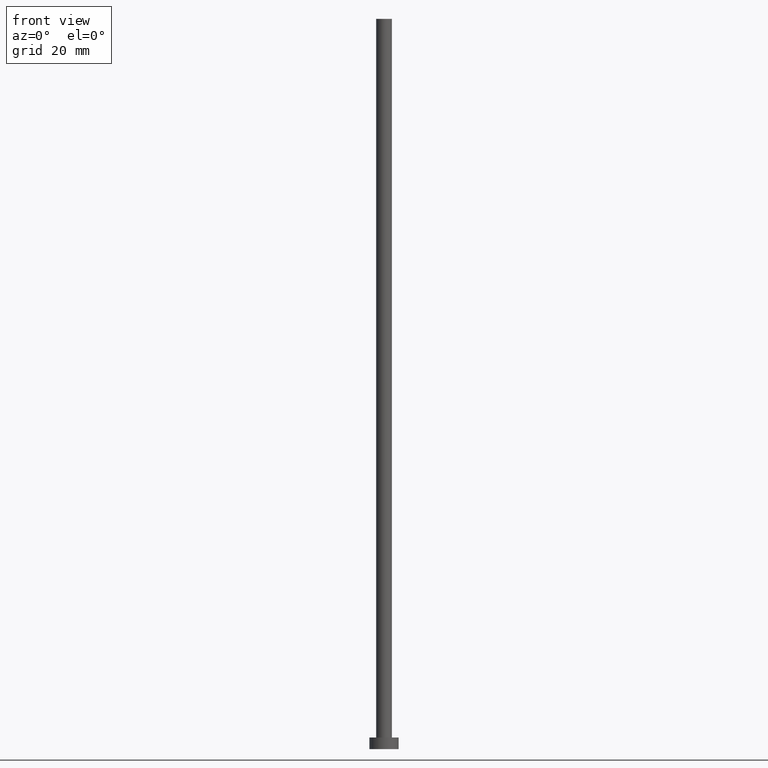
[diagram: clean part render]
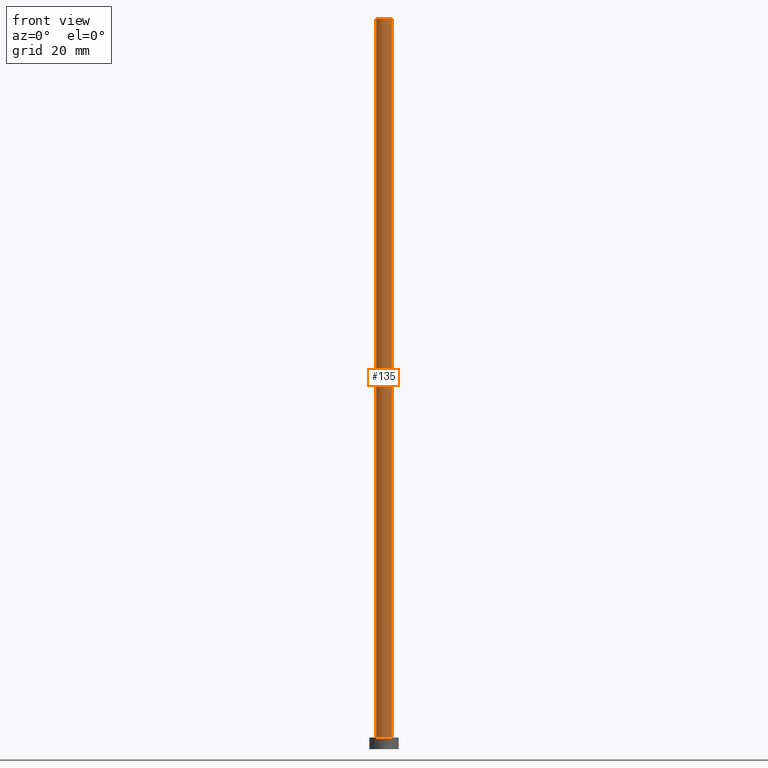
[diagram: same view with one face highlighted and labeled with its STEP entity id]
A machine part, front view. The second image highlights one B-rep face of the part: STEP entity #135.
In plain terms, the highlighted cylindrical surface (edge-blend (fillet) strip) has radius 1.35 mm, axis along (-0, -0, -1).
Its self-contained STEP definition (entity closure, byte-faithful):
#14 = DIRECTION ( 'NONE',  ( -1.000000000000000000, 0.000000000000000000, 0.000000000000000000 ) ) ;
#26 = DIRECTION ( 'NONE',  ( 1.000000000000000000, 0.000000000000000000, 0.000000000000000000 ) ) ;
#36 = CARTESIAN_POINT ( 'NONE',  ( 0.000000000000000000, 0.000000000000000000, 125.0000000000000000 ) ) ;
#40 = EDGE_LOOP ( 'NONE', ( #49, #241, #182, #137 ) ) ;
#46 = AXIS2_PLACEMENT_3D ( 'NONE', #131, #76, #97 ) ;
#48 = CARTESIAN_POINT ( 'NONE',  ( -1.350000000000000089, 0.000000000000000000, 125.0000000000000000 ) ) ;
#49 = ORIENTED_EDGE ( 'NONE', *, *, #247, .F. ) ;
#50 = LINE ( 'NONE', #144, #203 ) ;
#54 = CARTESIAN_POINT ( 'NONE',  ( -1.350000000000000089, 0.000000000000000000, 2.000000000000000000 ) ) ;
#55 = CYLINDRICAL_SURFACE ( 'NONE', #231, 1.350000000000000089 ) ;
#56 = EDGE_CURVE ( 'NONE', #197, #199, #145, .T. ) ;
#64 = EDGE_CURVE ( 'NONE', #199, #67, #227, .T. ) ;
#67 = VERTEX_POINT ( 'NONE', #139 ) ;
#74 = VECTOR ( 'NONE', #222, 1000.000000000000000 ) ;
#76 = DIRECTION ( 'NONE',  ( 0.000000000000000000, 0.000000000000000000, 1.000000000000000000 ) ) ;
#81 = AXIS2_PLACEMENT_3D ( 'NONE', #156, #184, #26 ) ;
#95 = FACE_OUTER_BOUND ( 'NONE', #40, .T. ) ;
#97 = DIRECTION ( 'NONE',  ( 1.000000000000000000, 0.000000000000000000, 0.000000000000000000 ) ) ;
#106 = VERTEX_POINT ( 'NONE', #211 ) ;
#125 = DIRECTION ( 'NONE',  ( -0.000000000000000000, -0.000000000000000000, -1.000000000000000000 ) ) ;
#131 = CARTESIAN_POINT ( 'NONE',  ( 0.000000000000000000, 0.000000000000000000, 125.0000000000000000 ) ) ;
#135 = ADVANCED_FACE ( 'NONE', ( #95 ), #55, .T. ) ;
#137 = ORIENTED_EDGE ( 'NONE', *, *, #64, .T. ) ;
#139 = CARTESIAN_POINT ( 'NONE',  ( 1.350000000000000089, 1.653273178848926867E-16, 2.000000000000000000 ) ) ;
#144 = CARTESIAN_POINT ( 'NONE',  ( 1.350000000000000089, 1.653273178848926867E-16, 125.0000000000000000 ) ) ;
#145 = LINE ( 'NONE', #48, #74 ) ;
#152 = CARTESIAN_POINT ( 'NONE',  ( -1.350000000000000089, 0.000000000000000000, 125.0000000000000000 ) ) ;
#156 = CARTESIAN_POINT ( 'NONE',  ( 0.000000000000000000, 0.000000000000000000, 2.000000000000000000 ) ) ;
#170 = EDGE_CURVE ( 'NONE', #197, #106, #171, .T. ) ;
#171 = CIRCLE ( 'NONE', #46, 1.350000000000000089 ) ;
#182 = ORIENTED_EDGE ( 'NONE', *, *, #56, .T. ) ;
#184 = DIRECTION ( 'NONE',  ( 0.000000000000000000, 0.000000000000000000, 1.000000000000000000 ) ) ;
#189 = DIRECTION ( 'NONE',  ( -0.000000000000000000, -0.000000000000000000, -1.000000000000000000 ) ) ;
#197 = VERTEX_POINT ( 'NONE', #152 ) ;
#199 = VERTEX_POINT ( 'NONE', #54 ) ;
#203 = VECTOR ( 'NONE', #125, 1000.000000000000000 ) ;
#211 = CARTESIAN_POINT ( 'NONE',  ( 1.350000000000000089, 1.653273178848926867E-16, 125.0000000000000000 ) ) ;
#222 = DIRECTION ( 'NONE',  ( -0.000000000000000000, -0.000000000000000000, -1.000000000000000000 ) ) ;
#227 = CIRCLE ( 'NONE', #81, 1.350000000000000089 ) ;
#231 = AXIS2_PLACEMENT_3D ( 'NONE', #36, #189, #14 ) ;
#241 = ORIENTED_EDGE ( 'NONE', *, *, #170, .F. ) ;
#247 = EDGE_CURVE ( 'NONE', #106, #67, #50, .T. ) ;